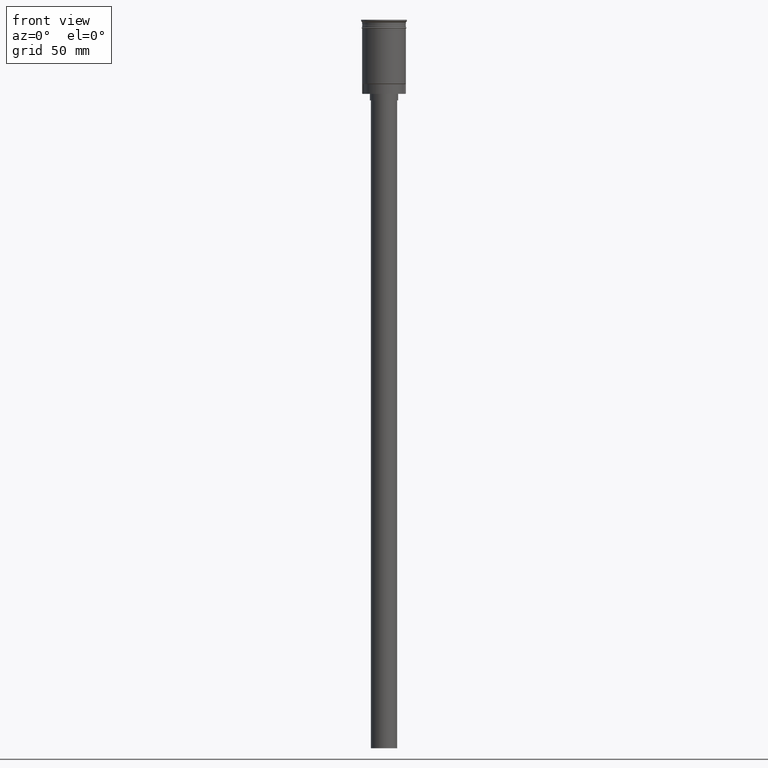
[diagram: clean part render]
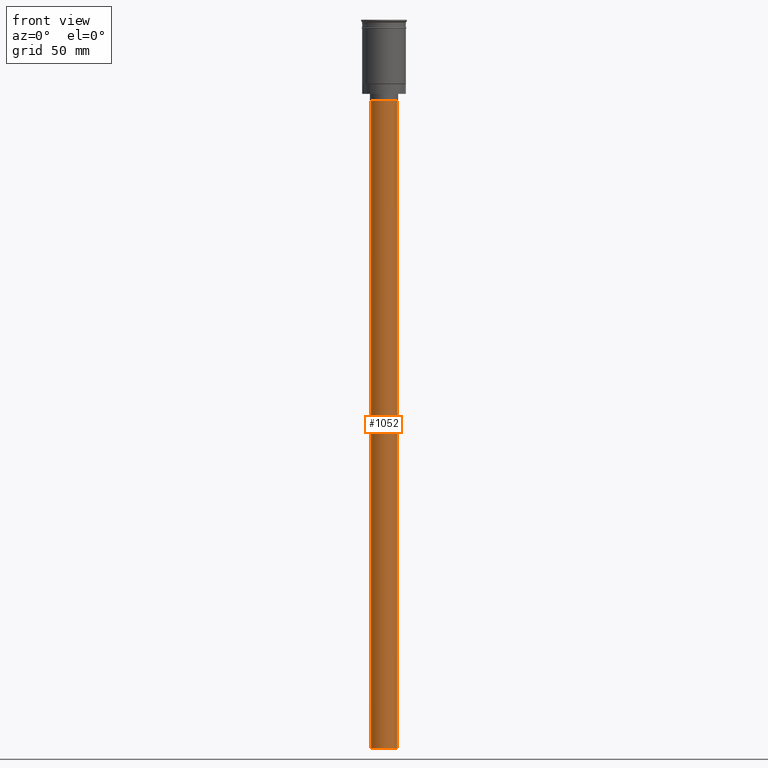
[diagram: same view with one face highlighted and labeled with its STEP entity id]
A machine part, front view. The second image highlights one B-rep face of the part: STEP entity #1052.
In plain terms, the highlighted cylindrical surface (edge-blend (fillet) strip) has radius 6 mm, axis along (-0, -0, 1).
Its self-contained STEP definition (entity closure, byte-faithful):
#112 = AXIS2_PLACEMENT_3D ( 'NONE', #516, #747, #1007 ) ;
#139 = CIRCLE ( 'NONE', #112, 6.000000000000000888 ) ;
#146 = ORIENTED_EDGE ( 'NONE', *, *, #379, .T. ) ;
#157 = CARTESIAN_POINT ( 'NONE',  ( 6.000000000000000888, 0.000000000000000000, -333.9999999999999432 ) ) ;
#210 = VERTEX_POINT ( 'NONE', #620 ) ;
#232 = EDGE_CURVE ( 'NONE', #1398, #210, #993, .T. ) ;
#275 = LINE ( 'NONE', #395, #1250 ) ;
#289 = AXIS2_PLACEMENT_3D ( 'NONE', #504, #1470, #854 ) ;
#358 = CARTESIAN_POINT ( 'NONE',  ( 0.000000000000000000, 0.000000000000000000, -333.9999999999999432 ) ) ;
#379 = EDGE_CURVE ( 'NONE', #891, #1433, #139, .T. ) ;
#395 = CARTESIAN_POINT ( 'NONE',  ( -6.000000000000000888, 7.347880794884120722E-16, -333.9999999999999432 ) ) ;
#407 = CARTESIAN_POINT ( 'NONE',  ( -6.000000000000000888, 7.347880794884120722E-16, -37.00000000000000000 ) ) ;
#434 = AXIS2_PLACEMENT_3D ( 'NONE', #358, #1451, #472 ) ;
#471 = DIRECTION ( 'NONE',  ( -0.000000000000000000, -0.000000000000000000, 1.000000000000000000 ) ) ;
#472 = DIRECTION ( 'NONE',  ( 1.000000000000000000, 0.000000000000000000, 0.000000000000000000 ) ) ;
#504 = CARTESIAN_POINT ( 'NONE',  ( 0.000000000000000000, 0.000000000000000000, -333.9999999999999432 ) ) ;
#516 = CARTESIAN_POINT ( 'NONE',  ( 0.000000000000000000, 0.000000000000000000, -37.00000000000000000 ) ) ;
#531 = DIRECTION ( 'NONE',  ( -0.000000000000000000, -0.000000000000000000, 1.000000000000000000 ) ) ;
#564 = ORIENTED_EDGE ( 'NONE', *, *, #1562, .T. ) ;
#583 = CYLINDRICAL_SURFACE ( 'NONE', #434, 6.000000000000000888 ) ;
#620 = CARTESIAN_POINT ( 'NONE',  ( -6.000000000000000888, 7.347880794884120722E-16, -333.9999999999999432 ) ) ;
#659 = VECTOR ( 'NONE', #471, 1000.000000000000000 ) ;
#747 = DIRECTION ( 'NONE',  ( 0.000000000000000000, 0.000000000000000000, -1.000000000000000000 ) ) ;
#760 = ORIENTED_EDGE ( 'NONE', *, *, #1430, .F. ) ;
#764 = CARTESIAN_POINT ( 'NONE',  ( 6.000000000000000888, 0.000000000000000000, -333.9999999999999432 ) ) ;
#854 = DIRECTION ( 'NONE',  ( -1.000000000000000000, 0.000000000000000000, 0.000000000000000000 ) ) ;
#885 = LINE ( 'NONE', #764, #659 ) ;
#891 = VERTEX_POINT ( 'NONE', #904 ) ;
#904 = CARTESIAN_POINT ( 'NONE',  ( 6.000000000000000888, 0.000000000000000000, -37.00000000000000000 ) ) ;
#993 = CIRCLE ( 'NONE', #289, 6.000000000000000888 ) ;
#1007 = DIRECTION ( 'NONE',  ( -1.000000000000000000, 0.000000000000000000, 0.000000000000000000 ) ) ;
#1052 = ADVANCED_FACE ( 'NONE', ( #1192 ), #583, .T. ) ;
#1192 = FACE_OUTER_BOUND ( 'NONE', #1598, .T. ) ;
#1250 = VECTOR ( 'NONE', #531, 1000.000000000000000 ) ;
#1398 = VERTEX_POINT ( 'NONE', #157 ) ;
#1430 = EDGE_CURVE ( 'NONE', #210, #1433, #275, .T. ) ;
#1433 = VERTEX_POINT ( 'NONE', #407 ) ;
#1439 = ORIENTED_EDGE ( 'NONE', *, *, #232, .F. ) ;
#1451 = DIRECTION ( 'NONE',  ( -0.000000000000000000, -0.000000000000000000, 1.000000000000000000 ) ) ;
#1470 = DIRECTION ( 'NONE',  ( 0.000000000000000000, 0.000000000000000000, -1.000000000000000000 ) ) ;
#1562 = EDGE_CURVE ( 'NONE', #1398, #891, #885, .T. ) ;
#1598 = EDGE_LOOP ( 'NONE', ( #760, #1439, #564, #146 ) ) ;